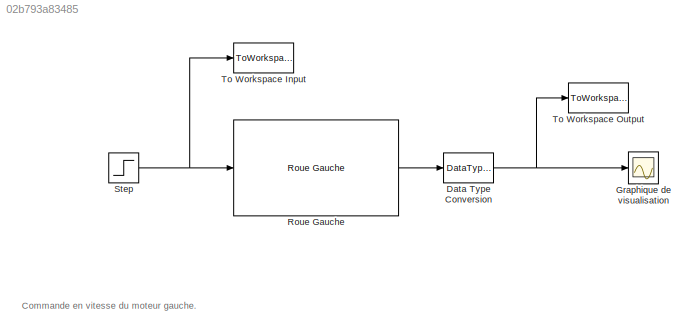
MODEL slx_02b793a83485
KIND model
CONFIG AbsTol = auto
CONFIG FixedStep = auto
CONFIG MaxStep = auto
CONFIG MinStep = auto
CONFIG RelTol = 1e-3
CONFIG SampleTimeConstraint = Unconstrained
CONFIG Solver = ode45
CONFIG SolverMode = Auto
CONFIG SolverName = ode45
CONFIG StartTime = 0.0
CONFIG StopTime = inf
BLOCK [DataTypeConversion] Data Type Conversion
  OutDataTypeStr = double
  RndMeth = Floor
  SaturateOnIntegerOverflow = off
BLOCK [Scope] Graphique de visualisation
  Floating = off
  NumInputPorts = 1
  Ports = [1]
BLOCK [Reference] Roue Gauche  REF=Wheels/Roue Gauche
  Ports = [1, 1]
  SourceBlock = Wheels/Roue Gauche
  SourceType = SubSystem
BLOCK [Step] Step
  After = 50
  SampleTime = 0
  Time = 3
BLOCK [ToWorkspace] To Workspace Input
  FixptAsFi = on
  MaxDataPoints = inf
  Ports = [1]
  SampleTime = -1
  Save2DSignal = 3-D array (concatenate along third dimension)
  SaveFormat = Structure With Time
  VariableName = LeftInput
BLOCK [ToWorkspace] To Workspace Output
  FixptAsFi = on
  MaxDataPoints = inf
  Ports = [1]
  SampleTime = -1
  Save2DSignal = 3-D array (concatenate along third dimension)
  SaveFormat = Structure With Time
  VariableName = LeftOutput
ANNOTATION (root): Commande en vitesse du moteur gauche.
NET Data Type Conversion:1 -> Graphique de visualisation:1, To Workspace Output:1
LINE Roue Gauche:1 -> Data Type Conversion:1
NET Step:1 -> Roue Gauche:1, To Workspace Input:1
note: NET lines group one-source signal fan-out (src -> all destinations, sorted); 1:1 wires keep LINE
